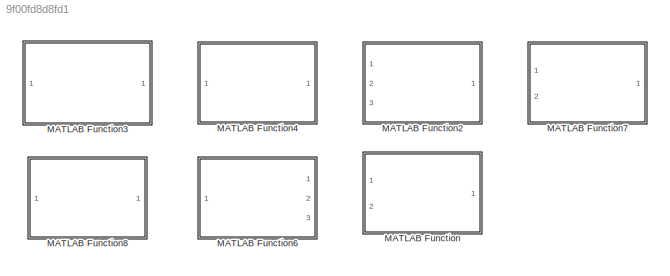
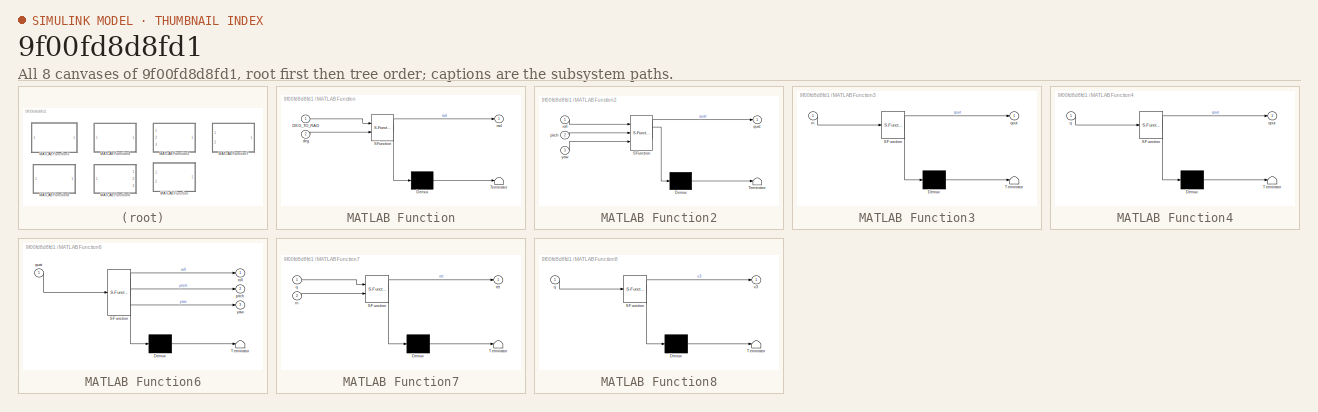
[diagram: thumbnail index - all 8 canvases of the model, root first then tree order]
MODEL slx_9f00fd8d8fd1
KIND library
BLOCK [SubSystem] MATLAB Function
  ErrorFcn = Stateflow.Translate.translate
  PermitHierarchicalResolution = ExplicitOnly
  Ports = [2, 1]
  RequestExecContextInheritance = off
  SFBlockType = MATLAB Function
  TreatAsAtomicUnit = on
BLOCK [Demux] MATLAB Function/ Demux 
  Outputs = 1
  Ports = [1, 1]
BLOCK [S-Function] MATLAB Function/ SFunction 
  EnableBusSupport = off
  FunctionName = sf_sfun
  PortCounts = [2 2]
  Ports = [2, 2]
  Tag = Stateflow S-Function Lib_AP_Math 3
BLOCK [Terminator] MATLAB Function/ Terminator 
BLOCK [Inport] MATLAB Function/DEG_TO_RAD
  IconDisplay = Port number
BLOCK [Inport] MATLAB Function/deg
  IconDisplay = Port number
  Port = 2
BLOCK [Outport] MATLAB Function/rad
  IconDisplay = Port number
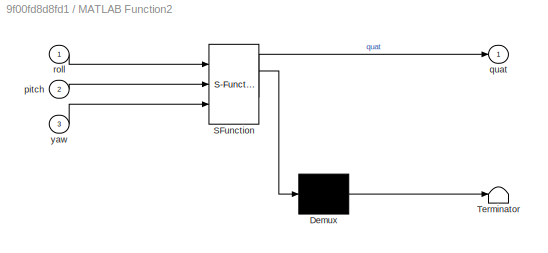
BLOCK [SubSystem] MATLAB Function2
  ErrorFcn = Stateflow.Translate.translate
  PermitHierarchicalResolution = ExplicitOnly
  Ports = [3, 1]
  RequestExecContextInheritance = off
  SFBlockType = MATLAB Function
  TreatAsAtomicUnit = on
BLOCK [Demux] MATLAB Function2/ Demux 
  Outputs = 1
  Ports = [1, 1]
BLOCK [S-Function] MATLAB Function2/ SFunction 
  EnableBusSupport = off
  FunctionName = sf_sfun
  PortCounts = [3 2]
  Ports = [3, 2]
  Tag = Stateflow S-Function Lib_AP_Math 13
BLOCK [Terminator] MATLAB Function2/ Terminator 
BLOCK [Inport] MATLAB Function2/pitch
  IconDisplay = Port number
  Port = 2
BLOCK [Outport] MATLAB Function2/quat
  IconDisplay = Port number
BLOCK [Inport] MATLAB Function2/roll
  IconDisplay = Port number
BLOCK [Inport] MATLAB Function2/yaw
  IconDisplay = Port number
  Port = 3
BLOCK [SubSystem] MATLAB Function3
  ErrorFcn = Stateflow.Translate.translate
  PermitHierarchicalResolution = ExplicitOnly
  Ports = [1, 1]
  RequestExecContextInheritance = off
  SFBlockType = MATLAB Function
  TreatAsAtomicUnit = on
BLOCK [Demux] MATLAB Function3/ Demux 
  Outputs = 1
  Ports = [1, 1]
BLOCK [S-Function] MATLAB Function3/ SFunction 
  EnableBusSupport = off
  FunctionName = sf_sfun
  PortCounts = [1 2]
  Ports = [1, 2]
  Tag = Stateflow S-Function Lib_AP_Math 16
BLOCK [Terminator] MATLAB Function3/ Terminator 
BLOCK [Inport] MATLAB Function3/m
  IconDisplay = Port number
BLOCK [Outport] MATLAB Function3/qout
  IconDisplay = Port number
BLOCK [SubSystem] MATLAB Function4
  ErrorFcn = Stateflow.Translate.translate
  PermitHierarchicalResolution = ExplicitOnly
  Ports = [1, 1]
  RequestExecContextInheritance = off
  SFBlockType = MATLAB Function
  TreatAsAtomicUnit = on
BLOCK [Demux] MATLAB Function4/ Demux 
  Outputs = 1
  Ports = [1, 1]
BLOCK [S-Function] MATLAB Function4/ SFunction 
  EnableBusSupport = off
  FunctionName = sf_sfun
  PortCounts = [1 2]
  Ports = [1, 2]
  Tag = Stateflow S-Function Lib_AP_Math 17
BLOCK [Terminator] MATLAB Function4/ Terminator 
BLOCK [Inport] MATLAB Function4/q
  IconDisplay = Port number
BLOCK [Outport] MATLAB Function4/qout
  IconDisplay = Port number
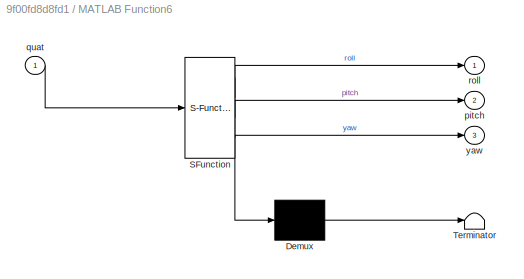
BLOCK [SubSystem] MATLAB Function6
  ErrorFcn = Stateflow.Translate.translate
  PermitHierarchicalResolution = ExplicitOnly
  Ports = [1, 3]
  RequestExecContextInheritance = off
  SFBlockType = MATLAB Function
  TreatAsAtomicUnit = on
BLOCK [Demux] MATLAB Function6/ Demux 
  Outputs = 1
  Ports = [1, 1]
BLOCK [S-Function] MATLAB Function6/ SFunction 
  EnableBusSupport = off
  FunctionName = sf_sfun
  PortCounts = [1 4]
  Ports = [1, 4]
  Tag = Stateflow S-Function Lib_AP_Math 19
BLOCK [Terminator] MATLAB Function6/ Terminator 
BLOCK [Outport] MATLAB Function6/pitch
  IconDisplay = Port number
  Port = 2
BLOCK [Inport] MATLAB Function6/quat
  IconDisplay = Port number
BLOCK [Outport] MATLAB Function6/roll
  IconDisplay = Port number
BLOCK [Outport] MATLAB Function6/yaw
  IconDisplay = Port number
  Port = 3
BLOCK [SubSystem] MATLAB Function7
  ErrorFcn = Stateflow.Translate.translate
  PermitHierarchicalResolution = ExplicitOnly
  Ports = [2, 1]
  RequestExecContextInheritance = off
  SFBlockType = MATLAB Function
  TreatAsAtomicUnit = on
BLOCK [Demux] MATLAB Function7/ Demux 
  Outputs = 1
  Ports = [1, 1]
BLOCK [S-Function] MATLAB Function7/ SFunction 
  EnableBusSupport = off
  FunctionName = sf_sfun
  PortCounts = [2 2]
  Ports = [2, 2]
  Tag = Stateflow S-Function Lib_AP_Math 20
BLOCK [Terminator] MATLAB Function7/ Terminator 
BLOCK [Inport] MATLAB Function7/m
  IconDisplay = Port number
  Port = 2
BLOCK [Inport] MATLAB Function7/q
  IconDisplay = Port number
BLOCK [Outport] MATLAB Function7/ret
  IconDisplay = Port number
BLOCK [SubSystem] MATLAB Function8
  ErrorFcn = Stateflow.Translate.translate
  PermitHierarchicalResolution = ExplicitOnly
  Ports = [1, 1]
  RequestExecContextInheritance = off
  SFBlockType = MATLAB Function
  TreatAsAtomicUnit = on
BLOCK [Demux] MATLAB Function8/ Demux 
  Outputs = 1
  Ports = [1, 1]
BLOCK [S-Function] MATLAB Function8/ SFunction 
  EnableBusSupport = off
  FunctionName = sf_sfun
  PortCounts = [1 2]
  Ports = [1, 2]
  Tag = Stateflow S-Function Lib_AP_Math 21
BLOCK [Terminator] MATLAB Function8/ Terminator 
BLOCK [Inport] MATLAB Function8/q
  IconDisplay = Port number
BLOCK [Outport] MATLAB Function8/v3
  IconDisplay = Port number
CHART MATLAB Function states=1 transitions=1
  STATE_LABEL 'eML_blk_kernel()'
  STATE_LABEL 'SCRIPT:\nfunction rad = radians(DEG_TO_RAD,deg)\n%#codegen\n%将角度转化为弧度\nrad = deg*DEG_TO_RAD;\n'
CHART MATLAB Function2 states=1 transitions=1
  STATE_LABEL 'eML_blk_kernel()'
  STATE_LABEL 'SCRIPT:\nfunction quat= from_euler(roll,pitch,yaw)\n%%将欧拉角转化为四元数\n%#codegen\n    cr2 = cos(roll*0.5);\n    cp2 = cos(pitch*0.5);\n    cy2 = cos(yaw*0.5);\n    sr2 = sin(roll*0.5);\n    sp2 = sin(pitch*0.5);\n    sy2 = sin(yaw*0.5);\n\n    q1 = cr2*cp2*cy2 + sr2*sp2*sy2;\n    q2 = sr2*cp2*cy2 - cr2*sp2*sy2;\n    q3 = cr2*sp2*cy2 + sr2*cp2*sy2;\n    q4 = cr2*cp2*sy2 - sr2*sp2*cy2;\n    quat=[q1;q2;q3;q4];\n\n% void ...<+432ch>'
CHART MATLAB Function3 states=1 transitions=1
  STATE_LABEL 'eML_blk_kernel()'
  STATE_LABEL 'SCRIPT:\nfunction qout=from_rotation_matrix(m)\n%#codegen\n% //返回与旋转矩阵m等效的四元数qout\n% // return the rotation matrix equivalent for this quaternion\n% // Thanks to Martin John Baker\n% // http://www.euclideanspace.com/maths/geometry/rotations/conversions/matrixToQuaternion/index.htm\n%a,b,c是列数，x,y,z是行数\n    m00 = m(1,1);\n    m11 = m(2,2);\n    m22 = m(3,3);\n    m10 = m(1,2);\n    m01 = m(2,1);\n    m20 = m(1,3...<+2532ch>'
CHART MATLAB Function4 states=1 transitions=1
  STATE_LABEL 'eML_blk_kernel()'
  STATE_LABEL "SCRIPT:\nfunction qout=inverse(q)\n%#codegen\n%四元素求逆\nqout=[q(1), -q(2), -q(3), -q(4)]';\n% Quaternion Quaternion::inverse(void) const\n% {\n%     return Quaternion(q1, -q2, -q3, -q4);\n% }\n"
CHART MATLAB Function6 states=1 transitions=1
  STATE_LABEL 'eML_blk_kernel()'
  STATE_LABEL 'SCRIPT:\nfunction [roll,pitch,yaw]=to_euler(quat)\n%将四元素转化为对应的欧拉角\n%#codegen\nq1=quat(1);\nq2=quat(2);\nq3=quat(3);\nq4=quat(4);\n roll=(atan2(2.0*(q1*q2 + q3*q4), 1 - 2.0*(q2*q2 + q3*q3)));\n \n safe_asin=(2.0*(q1*q3 - q4*q2));\n %省略函数safe_asin\n pitch=asin(safe_asin);\n \nyaw= atan2(2.0*(q1*q4 + q2*q3), 1 - 2.0*(q3*q3 + q4*q4));\n%这个函数有待理论验证'
CHART MATLAB Function7 states=1 transitions=1
  STATE_LABEL 'eML_blk_kernel()'
  STATE_LABEL "SCRIPT:\n\n%%%%%%%%%%%四元数乘法函数%%%%%%%%%%%%\n% 只进行四元数乘法计算，不进行任何归一化处理\n%调用举例\n% % a=[1 2 2 3]';\n% % b=[2 4 2 3]';\n% % q=qmul(a,b)\nfunction ret =qmul(q,m)\nlm=q(1);\np1=q(2);\np2=q(3);\np3=q(4);\nq1 =[lm -p1 -p2 -p3;\n    p1  lm -p3  p2;\n    p2  p3  lm -p1;\n    p3 -p2  p1  lm]*m;\nret=q1;\n% Quaternion ret;\n%     const float &w1 = q1;\n%     const float &x1 = q2;\n%     const float &y1 = q3;\n%     const float &z1 = ...<+307ch>"
CHART MATLAB Function8 states=1 transitions=1
  STATE_LABEL 'eML_blk_kernel()'
  STATE_LABEL "SCRIPT:\nfunction v3=to_axis_angle(q)\n%#codegen\n%四元数转化为对应的旋转矢量\nv3=[q(2), q(3), q(4)]';\nl=sqrt(q(2)*q(2)+q(3)*q(3)+q(4)*q(4));\n\nif l>1.0e-12  %避免除以一个过小的数\n    v3=v3/l;%转轴\n    al=2.0*atan2(l,q(1));%旋转弧度\n    v3=al*v3;\nend\n%\n% float l = sqrt(sq(q2)+sq(q3)+sq(q4));\n%     v = Vector3f(q2,q3,q4);\n%     if (l >= 1.0e-12f) {\n%         v /= l;\n%         v *= wrap_PI(2.0f * atan2f(l,q1));\n%     }"
